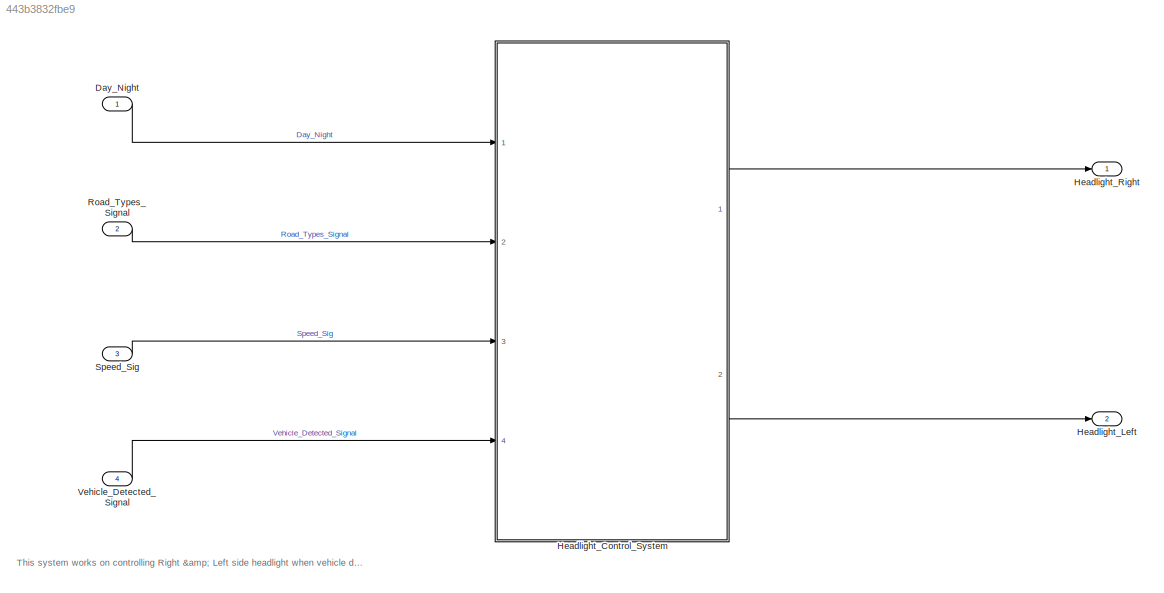
MODEL slx_443b3832fbe9
KIND model
CONFIG AbsTol = auto
CONFIG EnableMultiTasking = off
CONFIG FixedStep = 0.08
CONFIG MaxStep = auto
CONFIG MinStep = auto
CONFIG RelTol = 1e-3
CONFIG SampleTimeConstraint = Unconstrained
CONFIG Solver = FixedStepDiscrete
CONFIG SolverName = FixedStepDiscrete
CONFIG StartTime = 0.0
CONFIG StopTime = 10.0
BLOCK [Inport] Day_Night
  IconDisplay = Port number
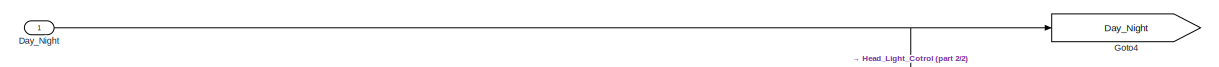
[diagram: Headlight_Control_System - part 1/2, full width, top band]
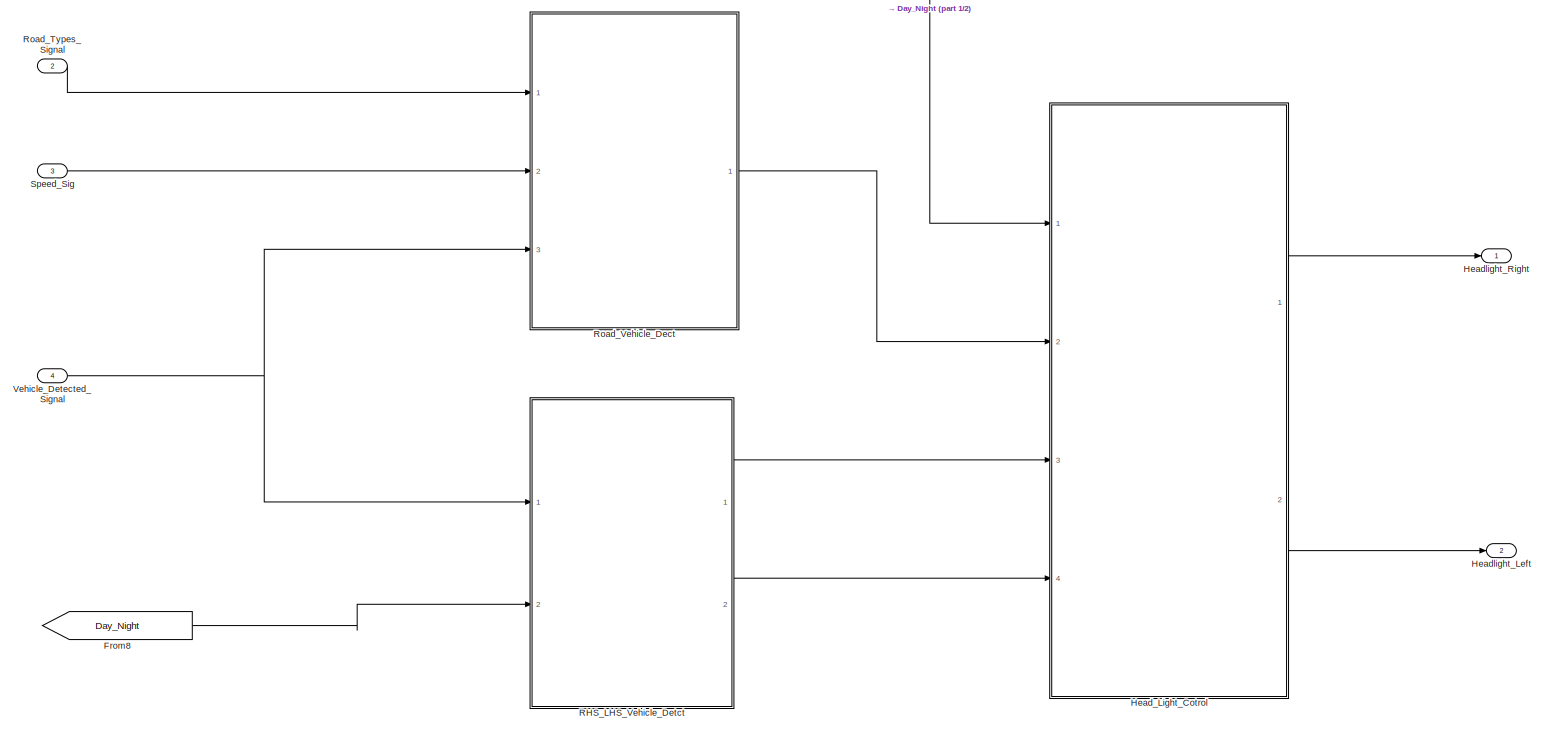
[diagram: Headlight_Control_System - part 2/2, most of the canvas]
BLOCK [SubSystem] Headlight_Control_System
  Ports = [4, 2]
  RequestExecContextInheritance = off
  TreatAsAtomicUnit = on
BLOCK [Inport] Headlight_Control_System/Day_Night
  IconDisplay = Port number
BLOCK [From] Headlight_Control_System/From8
  GotoTag = Day_Night
BLOCK [Goto] Headlight_Control_System/Goto4
  GotoTag = Day_Night
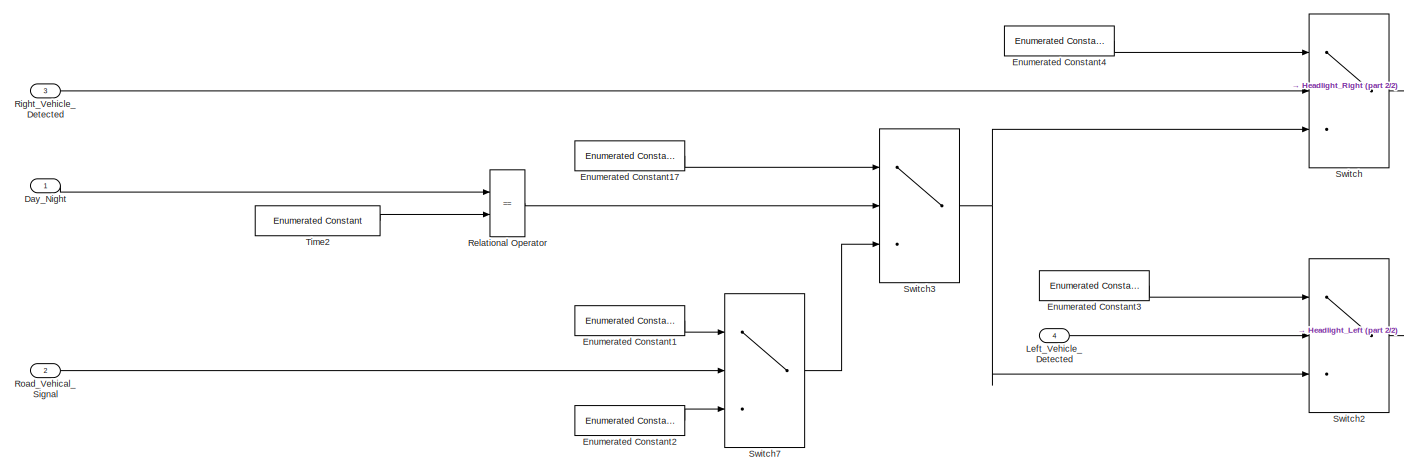
[diagram: Headlight_Control_System/Head_Light_Cotrol - part 1/2, most of the canvas]
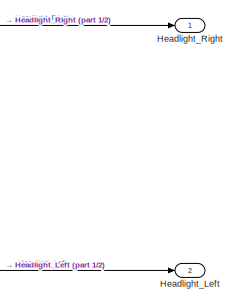
[diagram: Headlight_Control_System/Head_Light_Cotrol - part 2/2, middle right region]
BLOCK [SubSystem] Headlight_Control_System/Head_Light_Cotrol
  Ports = [4, 2]
  RequestExecContextInheritance = off
BLOCK [Inport] Headlight_Control_System/Head_Light_Cotrol/Day_Night
  IconDisplay = Port number
BLOCK [Reference] Headlight_Control_System/Head_Light_Cotrol/Enumerated Constant1  REF=simulink/Sources/Enumerated
Constant
  Ports = [0, 1]
  SourceBlock = simulink/Sources/Enumerated\nConstant
  SourceProductBaseCode = SL
  SourceType = Enumerated Constant
BLOCK [Reference] Headlight_Control_System/Head_Light_Cotrol/Enumerated Constant17  REF=simulink/Sources/Enumerated
Constant
  Ports = [0, 1]
  SourceBlock = simulink/Sources/Enumerated\nConstant
  SourceProductBaseCode = SL
  SourceType = Enumerated Constant
BLOCK [Reference] Headlight_Control_System/Head_Light_Cotrol/Enumerated Constant2  REF=simulink/Sources/Enumerated
Constant
  Ports = [0, 1]
  SourceBlock = simulink/Sources/Enumerated\nConstant
  SourceProductBaseCode = SL
  SourceType = Enumerated Constant
BLOCK [Reference] Headlight_Control_System/Head_Light_Cotrol/Enumerated Constant3  REF=simulink/Sources/Enumerated
Constant
  Ports = [0, 1]
  SourceBlock = simulink/Sources/Enumerated\nConstant
  SourceProductBaseCode = SL
  SourceType = Enumerated Constant
BLOCK [Reference] Headlight_Control_System/Head_Light_Cotrol/Enumerated Constant4  REF=simulink/Sources/Enumerated
Constant
  Ports = [0, 1]
  SourceBlock = simulink/Sources/Enumerated\nConstant
  SourceProductBaseCode = SL
  SourceType = Enumerated Constant
BLOCK [Outport] Headlight_Control_System/Head_Light_Cotrol/Headlight_Left
  IconDisplay = Port number
  Port = 2
  VectorParamsAs1DForOutWhenUnconnected = on
BLOCK [Outport] Headlight_Control_System/Head_Light_Cotrol/Headlight_Right
  IconDisplay = Port number
  VectorParamsAs1DForOutWhenUnconnected = on
BLOCK [Inport] Headlight_Control_System/Head_Light_Cotrol/Left_Vehicle_Detected
  IconDisplay = Port number
  Port = 4
BLOCK [RelationalOperator] Headlight_Control_System/Head_Light_Cotrol/Relational Operator
  InputSameDT = off
  Operator = ==
  OutDataTypeStr = boolean
  Ports = [2, 1]
  RndMeth = Simplest
BLOCK [Inport] Headlight_Control_System/Head_Light_Cotrol/Right_Vehicle_Detected
  IconDisplay = Port number
  Port = 3
BLOCK [Inport] Headlight_Control_System/Head_Light_Cotrol/Road_Vehical_Signal
  IconDisplay = Port number
  Port = 2
BLOCK [Switch] Headlight_Control_System/Head_Light_Cotrol/Switch
  Criteria = u2 ~= 0
  InputSameDT = off
  OutDataTypeStr = Inherit: Inherit via back propagation
  SaturateOnIntegerOverflow = off
BLOCK [Switch] Headlight_Control_System/Head_Light_Cotrol/Switch2
  Criteria = u2 ~= 0
  InputSameDT = off
  OutDataTypeStr = Inherit: Inherit via back propagation
  SaturateOnIntegerOverflow = off
BLOCK [Switch] Headlight_Control_System/Head_Light_Cotrol/Switch3
  Criteria = u2 ~= 0
  InputSameDT = off
  SaturateOnIntegerOverflow = off
BLOCK [Switch] Headlight_Control_System/Head_Light_Cotrol/Switch7
  Criteria = u2 ~= 0
  InputSameDT = off
  SaturateOnIntegerOverflow = off
BLOCK [Reference] Headlight_Control_System/Head_Light_Cotrol/Time2  REF=simulink/Sources/Enumerated
Constant
  Ports = [0, 1]
  SourceBlock = simulink/Sources/Enumerated\nConstant
  SourceProductBaseCode = SL
  SourceType = Enumerated Constant
BLOCK [Outport] Headlight_Control_System/Headlight_Left
  IconDisplay = Port number
  Port = 2
  VectorParamsAs1DForOutWhenUnconnected = on
BLOCK [Outport] Headlight_Control_System/Headlight_Right
  IconDisplay = Port number
  VectorParamsAs1DForOutWhenUnconnected = on
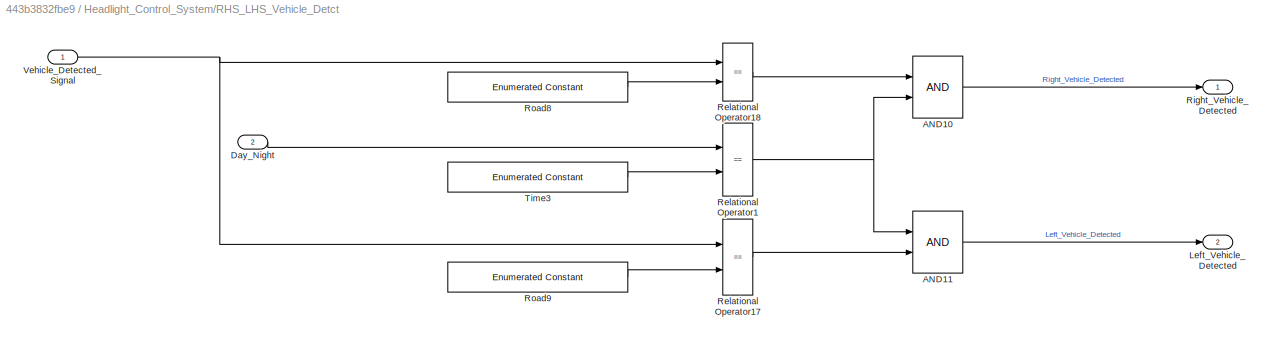
BLOCK [SubSystem] Headlight_Control_System/RHS_LHS_Vehicle_Detct
  Ports = [2, 2]
  RequestExecContextInheritance = off
BLOCK [Logic] Headlight_Control_System/RHS_LHS_Vehicle_Detct/AND10
  AllPortsSameDT = off
  OutDataTypeStr = boolean
  Ports = [2, 1]
BLOCK [Logic] Headlight_Control_System/RHS_LHS_Vehicle_Detct/AND11
  AllPortsSameDT = off
  OutDataTypeStr = boolean
  Ports = [2, 1]
BLOCK [Inport] Headlight_Control_System/RHS_LHS_Vehicle_Detct/Day_Night
  IconDisplay = Port number
  Port = 2
BLOCK [Outport] Headlight_Control_System/RHS_LHS_Vehicle_Detct/Left_Vehicle_Detected
  IconDisplay = Port number
  Port = 2
  VectorParamsAs1DForOutWhenUnconnected = on
BLOCK [RelationalOperator] Headlight_Control_System/RHS_LHS_Vehicle_Detct/Relational Operator1
  InputSameDT = off
  Operator = ==
  OutDataTypeStr = boolean
  Ports = [2, 1]
  RndMeth = Simplest
BLOCK [RelationalOperator] Headlight_Control_System/RHS_LHS_Vehicle_Detct/Relational Operator17
  InputSameDT = off
  Operator = ==
  OutDataTypeStr = boolean
  Ports = [2, 1]
  RndMeth = Simplest
BLOCK [RelationalOperator] Headlight_Control_System/RHS_LHS_Vehicle_Detct/Relational Operator18
  InputSameDT = off
  Operator = ==
  OutDataTypeStr = boolean
  Ports = [2, 1]
  RndMeth = Simplest
BLOCK [Outport] Headlight_Control_System/RHS_LHS_Vehicle_Detct/Right_Vehicle_Detected
  IconDisplay = Port number
  VectorParamsAs1DForOutWhenUnconnected = on
BLOCK [Reference] Headlight_Control_System/RHS_LHS_Vehicle_Detct/Road8  REF=simulink/Sources/Enumerated
Constant
  Ports = [0, 1]
  SourceBlock = simulink/Sources/Enumerated\nConstant
  SourceProductBaseCode = SL
  SourceType = Enumerated Constant
BLOCK [Reference] Headlight_Control_System/RHS_LHS_Vehicle_Detct/Road9  REF=simulink/Sources/Enumerated
Constant
  Ports = [0, 1]
  SourceBlock = simulink/Sources/Enumerated\nConstant
  SourceProductBaseCode = SL
  SourceType = Enumerated Constant
BLOCK [Reference] Headlight_Control_System/RHS_LHS_Vehicle_Detct/Time3  REF=simulink/Sources/Enumerated
Constant
  Ports = [0, 1]
  SourceBlock = simulink/Sources/Enumerated\nConstant
  SourceProductBaseCode = SL
  SourceType = Enumerated Constant
BLOCK [Inport] Headlight_Control_System/RHS_LHS_Vehicle_Detct/Vehicle_Detected_Signal
  IconDisplay = Port number
BLOCK [Inport] Headlight_Control_System/Road_Types_Signal
  IconDisplay = Port number
  Port = 2
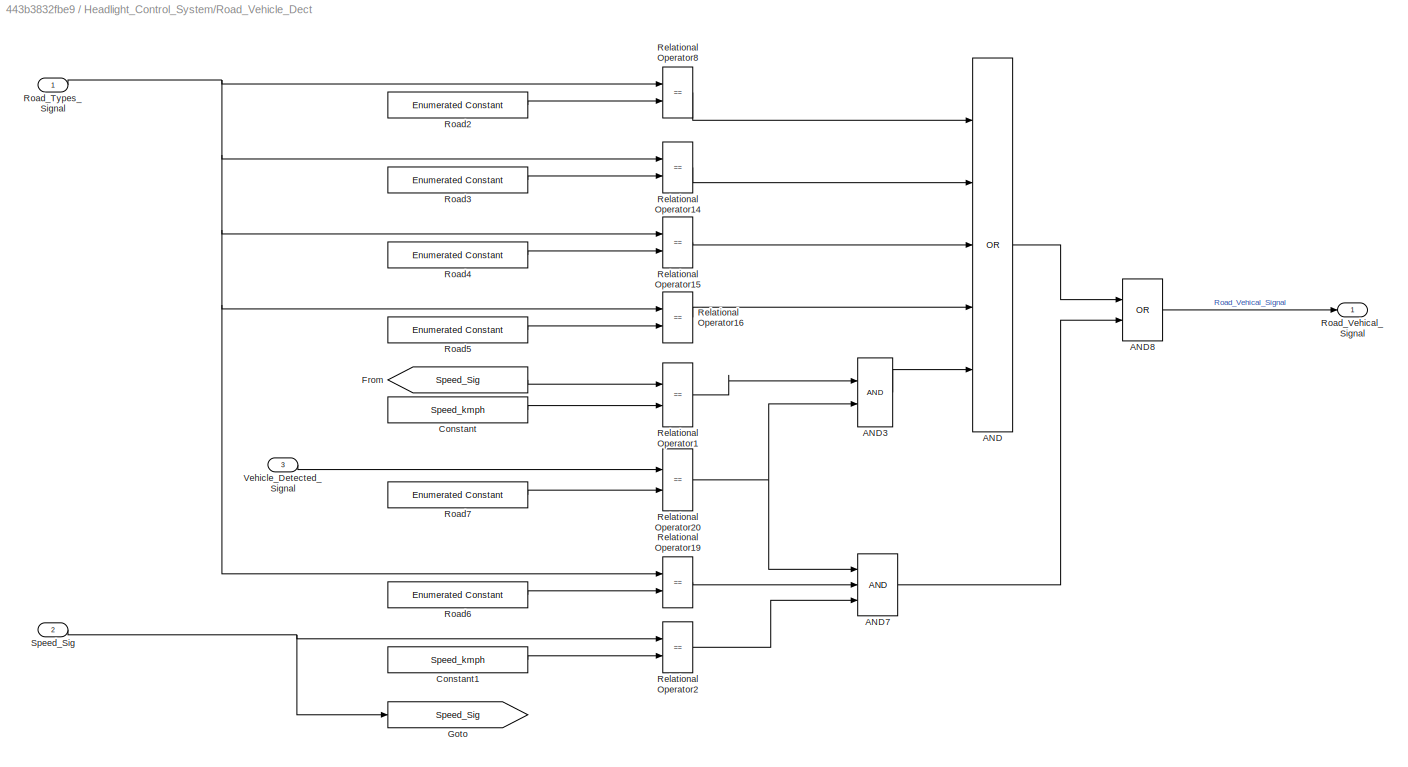
BLOCK [SubSystem] Headlight_Control_System/Road_Vehicle_Dect
  Ports = [3, 1]
  RequestExecContextInheritance = off
BLOCK [Logic] Headlight_Control_System/Road_Vehicle_Dect/AND
  AllPortsSameDT = off
  Inputs = 5
  Operator = OR
  OutDataTypeStr = boolean
  Ports = [5, 1]
BLOCK [Logic] Headlight_Control_System/Road_Vehicle_Dect/AND3
  AllPortsSameDT = off
  OutDataTypeStr = boolean
  Ports = [2, 1]
BLOCK [Logic] Headlight_Control_System/Road_Vehicle_Dect/AND7
  AllPortsSameDT = off
  Inputs = 3
  OutDataTypeStr = boolean
  Ports = [3, 1]
BLOCK [Logic] Headlight_Control_System/Road_Vehicle_Dect/AND8
  AllPortsSameDT = off
  Operator = OR
  OutDataTypeStr = boolean
  Ports = [2, 1]
BLOCK [Constant] Headlight_Control_System/Road_Vehicle_Dect/Constant
  Value = Speed_kmph
BLOCK [Constant] Headlight_Control_System/Road_Vehicle_Dect/Constant1
  Value = Speed_kmph
BLOCK [From] Headlight_Control_System/Road_Vehicle_Dect/From
  GotoTag = Speed_Sig
BLOCK [Goto] Headlight_Control_System/Road_Vehicle_Dect/Goto
  GotoTag = Speed_Sig
BLOCK [RelationalOperator] Headlight_Control_System/Road_Vehicle_Dect/Relational Operator1
  InputSameDT = off
  Operator = ==
  OutDataTypeStr = boolean
  Ports = [2, 1]
  RndMeth = Simplest
BLOCK [RelationalOperator] Headlight_Control_System/Road_Vehicle_Dect/Relational Operator14
  InputSameDT = off
  Operator = ==
  OutDataTypeStr = boolean
  Ports = [2, 1]
  RndMeth = Simplest
BLOCK [RelationalOperator] Headlight_Control_System/Road_Vehicle_Dect/Relational Operator15
  InputSameDT = off
  Operator = ==
  OutDataTypeStr = boolean
  Ports = [2, 1]
  RndMeth = Simplest
BLOCK [RelationalOperator] Headlight_Control_System/Road_Vehicle_Dect/Relational Operator16
  InputSameDT = off
  Operator = ==
  OutDataTypeStr = boolean
  Ports = [2, 1]
  RndMeth = Simplest
BLOCK [RelationalOperator] Headlight_Control_System/Road_Vehicle_Dect/Relational Operator19
  InputSameDT = off
  Operator = ==
  OutDataTypeStr = boolean
  Ports = [2, 1]
  RndMeth = Simplest
BLOCK [RelationalOperator] Headlight_Control_System/Road_Vehicle_Dect/Relational Operator2
  InputSameDT = off
  Operator = ==
  OutDataTypeStr = boolean
  Ports = [2, 1]
  RndMeth = Simplest
BLOCK [RelationalOperator] Headlight_Control_System/Road_Vehicle_Dect/Relational Operator20
  InputSameDT = off
  Operator = ==
  OutDataTypeStr = boolean
  Ports = [2, 1]
  RndMeth = Simplest
BLOCK [RelationalOperator] Headlight_Control_System/Road_Vehicle_Dect/Relational Operator8
  InputSameDT = off
  Operator = ==
  OutDataTypeStr = boolean
  Ports = [2, 1]
  RndMeth = Simplest
BLOCK [Reference] Headlight_Control_System/Road_Vehicle_Dect/Road2  REF=simulink/Sources/Enumerated
Constant
  Ports = [0, 1]
  SourceBlock = simulink/Sources/Enumerated\nConstant
  SourceProductBaseCode = SL
  SourceType = Enumerated Constant
BLOCK [Reference] Headlight_Control_System/Road_Vehicle_Dect/Road3  REF=simulink/Sources/Enumerated
Constant
  Ports = [0, 1]
  SourceBlock = simulink/Sources/Enumerated\nConstant
  SourceProductBaseCode = SL
  SourceType = Enumerated Constant
BLOCK [Reference] Headlight_Control_System/Road_Vehicle_Dect/Road4  REF=simulink/Sources/Enumerated
Constant
  Ports = [0, 1]
  SourceBlock = simulink/Sources/Enumerated\nConstant
  SourceProductBaseCode = SL
  SourceType = Enumerated Constant
BLOCK [Reference] Headlight_Control_System/Road_Vehicle_Dect/Road5  REF=simulink/Sources/Enumerated
Constant
  Ports = [0, 1]
  SourceBlock = simulink/Sources/Enumerated\nConstant
  SourceProductBaseCode = SL
  SourceType = Enumerated Constant
BLOCK [Reference] Headlight_Control_System/Road_Vehicle_Dect/Road6  REF=simulink/Sources/Enumerated
Constant
  Ports = [0, 1]
  SourceBlock = simulink/Sources/Enumerated\nConstant
  SourceProductBaseCode = SL
  SourceType = Enumerated Constant
BLOCK [Reference] Headlight_Control_System/Road_Vehicle_Dect/Road7  REF=simulink/Sources/Enumerated
Constant
  Ports = [0, 1]
  SourceBlock = simulink/Sources/Enumerated\nConstant
  SourceProductBaseCode = SL
  SourceType = Enumerated Constant
BLOCK [Inport] Headlight_Control_System/Road_Vehicle_Dect/Road_Types_Signal
  IconDisplay = Port number
BLOCK [Outport] Headlight_Control_System/Road_Vehicle_Dect/Road_Vehical_Signal
  IconDisplay = Port number
  VectorParamsAs1DForOutWhenUnconnected = on
BLOCK [Inport] Headlight_Control_System/Road_Vehicle_Dect/Speed_Sig
  IconDisplay = Port number
  Port = 2
BLOCK [Inport] Headlight_Control_System/Road_Vehicle_Dect/Vehicle_Detected_Signal
  IconDisplay = Port number
  Port = 3
BLOCK [Inport] Headlight_Control_System/Speed_Sig
  IconDisplay = Port number
  Port = 3
BLOCK [Inport] Headlight_Control_System/Vehicle_Detected_Signal
  IconDisplay = Port number
  Port = 4
BLOCK [Outport] Headlight_Left
  IconDisplay = Port number
  Port = 2
  VectorParamsAs1DForOutWhenUnconnected = on
BLOCK [Outport] Headlight_Right
  IconDisplay = Port number
  VectorParamsAs1DForOutWhenUnconnected = on
BLOCK [Inport] Road_Types_Signal
  IconDisplay = Port number
  Port = 2
BLOCK [Inport] Speed_Sig
  IconDisplay = Port number
  Port = 3
BLOCK [Inport] Vehicle_Detected_Signal
  IconDisplay = Port number
  Port = 4
ANNOTATION (root): This system works on controlling Right & Left side headlight when vehicle detected Left/Right side by consideing the speed of vehicle and the type of road in day & night situation.
LINE Day_Night:1 -> Headlight_Control_System:1
NET Headlight_Control_System/Day_Night:1 -> Headlight_Control_System/Goto4:1, Headlight_Control_System/Head_Light_Cotrol:1
LINE Headlight_Control_System/From8:1 -> Headlight_Control_System/RHS_LHS_Vehicle_Detct:2
LINE Headlight_Control_System/Head_Light_Cotrol/Day_Night:1 -> Headlight_Control_System/Head_Light_Cotrol/Relational Operator:1
LINE Headlight_Control_System/Head_Light_Cotrol/Enumerated Constant17:1 -> Headlight_Control_System/Head_Light_Cotrol/Switch3:1
LINE Headlight_Control_System/Head_Light_Cotrol/Enumerated Constant1:1 -> Headlight_Control_System/Head_Light_Cotrol/Switch7:1
LINE Headlight_Control_System/Head_Light_Cotrol/Enumerated Constant2:1 -> Headlight_Control_System/Head_Light_Cotrol/Switch7:3
LINE Headlight_Control_System/Head_Light_Cotrol/Enumerated Constant3:1 -> Headlight_Control_System/Head_Light_Cotrol/Switch2:1
LINE Headlight_Control_System/Head_Light_Cotrol/Enumerated Constant4:1 -> Headlight_Control_System/Head_Light_Cotrol/Switch:1
LINE Headlight_Control_System/Head_Light_Cotrol/Left_Vehicle_Detected:1 -> Headlight_Control_System/Head_Light_Cotrol/Switch2:2
LINE Headlight_Control_System/Head_Light_Cotrol/Relational Operator:1 -> Headlight_Control_System/Head_Light_Cotrol/Switch3:2
LINE Headlight_Control_System/Head_Light_Cotrol/Right_Vehicle_Detected:1 -> Headlight_Control_System/Head_Light_Cotrol/Switch:2
LINE Headlight_Control_System/Head_Light_Cotrol/Road_Vehical_Signal:1 -> Headlight_Control_System/Head_Light_Cotrol/Switch7:2
LINE Headlight_Control_System/Head_Light_Cotrol/Switch2:1 -> Headlight_Control_System/Head_Light_Cotrol/Headlight_Left:1
NET Headlight_Control_System/Head_Light_Cotrol/Switch3:1 -> Headlight_Control_System/Head_Light_Cotrol/Switch2:3, Headlight_Control_System/Head_Light_Cotrol/Switch:3
LINE Headlight_Control_System/Head_Light_Cotrol/Switch7:1 -> Headlight_Control_System/Head_Light_Cotrol/Switch3:3
LINE Headlight_Control_System/Head_Light_Cotrol/Switch:1 -> Headlight_Control_System/Head_Light_Cotrol/Headlight_Right:1
LINE Headlight_Control_System/Head_Light_Cotrol/Time2:1 -> Headlight_Control_System/Head_Light_Cotrol/Relational Operator:2
LINE Headlight_Control_System/Head_Light_Cotrol:1 -> Headlight_Control_System/Headlight_Right:1
LINE Headlight_Control_System/Head_Light_Cotrol:2 -> Headlight_Control_System/Headlight_Left:1
LINE Headlight_Control_System/RHS_LHS_Vehicle_Detct/AND10:1 -> Headlight_Control_System/RHS_LHS_Vehicle_Detct/Right_Vehicle_Detected:1
LINE Headlight_Control_System/RHS_LHS_Vehicle_Detct/AND11:1 -> Headlight_Control_System/RHS_LHS_Vehicle_Detct/Left_Vehicle_Detected:1
LINE Headlight_Control_System/RHS_LHS_Vehicle_Detct/Day_Night:1 -> Headlight_Control_System/RHS_LHS_Vehicle_Detct/Relational Operator1:1
LINE Headlight_Control_System/RHS_LHS_Vehicle_Detct/Relational Operator17:1 -> Headlight_Control_System/RHS_LHS_Vehicle_Detct/AND11:2
LINE Headlight_Control_System/RHS_LHS_Vehicle_Detct/Relational Operator18:1 -> Headlight_Control_System/RHS_LHS_Vehicle_Detct/AND10:1
NET Headlight_Control_System/RHS_LHS_Vehicle_Detct/Relational Operator1:1 -> Headlight_Control_System/RHS_LHS_Vehicle_Detct/AND10:2, Headlight_Control_System/RHS_LHS_Vehicle_Detct/AND11:1
LINE Headlight_Control_System/RHS_LHS_Vehicle_Detct/Road8:1 -> Headlight_Control_System/RHS_LHS_Vehicle_Detct/Relational Operator18:2
LINE Headlight_Control_System/RHS_LHS_Vehicle_Detct/Road9:1 -> Headlight_Control_System/RHS_LHS_Vehicle_Detct/Relational Operator17:2
LINE Headlight_Control_System/RHS_LHS_Vehicle_Detct/Time3:1 -> Headlight_Control_System/RHS_LHS_Vehicle_Detct/Relational Operator1:2
NET Headlight_Control_System/RHS_LHS_Vehicle_Detct/Vehicle_Detected_Signal:1 -> Headlight_Control_System/RHS_LHS_Vehicle_Detct/Relational Operator17:1, Headlight_Control_System/RHS_LHS_Vehicle_Detct/Relational Operator18:1
LINE Headlight_Control_System/RHS_LHS_Vehicle_Detct:1 -> Headlight_Control_System/Head_Light_Cotrol:3
LINE Headlight_Control_System/RHS_LHS_Vehicle_Detct:2 -> Headlight_Control_System/Head_Light_Cotrol:4
LINE Headlight_Control_System/Road_Types_Signal:1 -> Headlight_Control_System/Road_Vehicle_Dect:1
LINE Headlight_Control_System/Road_Vehicle_Dect/AND3:1 -> Headlight_Control_System/Road_Vehicle_Dect/AND:5
LINE Headlight_Control_System/Road_Vehicle_Dect/AND7:1 -> Headlight_Control_System/Road_Vehicle_Dect/AND8:2
LINE Headlight_Control_System/Road_Vehicle_Dect/AND8:1 -> Headlight_Control_System/Road_Vehicle_Dect/Road_Vehical_Signal:1
LINE Headlight_Control_System/Road_Vehicle_Dect/AND:1 -> Headlight_Control_System/Road_Vehicle_Dect/AND8:1
LINE Headlight_Control_System/Road_Vehicle_Dect/Constant1:1 -> Headlight_Control_System/Road_Vehicle_Dect/Relational Operator2:2
LINE Headlight_Control_System/Road_Vehicle_Dect/Constant:1 -> Headlight_Control_System/Road_Vehicle_Dect/Relational Operator1:2
LINE Headlight_Control_System/Road_Vehicle_Dect/From:1 -> Headlight_Control_System/Road_Vehicle_Dect/Relational Operator1:1
LINE Headlight_Control_System/Road_Vehicle_Dect/Relational Operator14:1 -> Headlight_Control_System/Road_Vehicle_Dect/AND:2
LINE Headlight_Control_System/Road_Vehicle_Dect/Relational Operator15:1 -> Headlight_Control_System/Road_Vehicle_Dect/AND:3
LINE Headlight_Control_System/Road_Vehicle_Dect/Relational Operator16:1 -> Headlight_Control_System/Road_Vehicle_Dect/AND:4
LINE Headlight_Control_System/Road_Vehicle_Dect/Relational Operator19:1 -> Headlight_Control_System/Road_Vehicle_Dect/AND7:2
LINE Headlight_Control_System/Road_Vehicle_Dect/Relational Operator1:1 -> Headlight_Control_System/Road_Vehicle_Dect/AND3:1
NET Headlight_Control_System/Road_Vehicle_Dect/Relational Operator20:1 -> Headlight_Control_System/Road_Vehicle_Dect/AND3:2, Headlight_Control_System/Road_Vehicle_Dect/AND7:1
LINE Headlight_Control_System/Road_Vehicle_Dect/Relational Operator2:1 -> Headlight_Control_System/Road_Vehicle_Dect/AND7:3
LINE Headlight_Control_System/Road_Vehicle_Dect/Relational Operator8:1 -> Headlight_Control_System/Road_Vehicle_Dect/AND:1
LINE Headlight_Control_System/Road_Vehicle_Dect/Road2:1 -> Headlight_Control_System/Road_Vehicle_Dect/Relational Operator8:2
LINE Headlight_Control_System/Road_Vehicle_Dect/Road3:1 -> Headlight_Control_System/Road_Vehicle_Dect/Relational Operator14:2
LINE Headlight_Control_System/Road_Vehicle_Dect/Road4:1 -> Headlight_Control_System/Road_Vehicle_Dect/Relational Operator15:2
LINE Headlight_Control_System/Road_Vehicle_Dect/Road5:1 -> Headlight_Control_System/Road_Vehicle_Dect/Relational Operator16:2
LINE Headlight_Control_System/Road_Vehicle_Dect/Road6:1 -> Headlight_Control_System/Road_Vehicle_Dect/Relational Operator19:2
LINE Headlight_Control_System/Road_Vehicle_Dect/Road7:1 -> Headlight_Control_System/Road_Vehicle_Dect/Relational Operator20:2
NET Headlight_Control_System/Road_Vehicle_Dect/Road_Types_Signal:1 -> Headlight_Control_System/Road_Vehicle_Dect/Relational Operator14:1, Headlight_Control_System/Road_Vehicle_Dect/Relational Operator15:1, Headlight_Control_System/Road_Vehicle_Dect/Relational Operator16:1, Headlight_Control_System/Road_Vehicle_Dect/Relational Operator19:1, Headlight_Control_System/Road_Vehicle_Dect/Relational Operator8:1
NET Headlight_Control_System/Road_Vehicle_Dect/Speed_Sig:1 -> Headlight_Control_System/Road_Vehicle_Dect/Goto:1, Headlight_Control_System/Road_Vehicle_Dect/Relational Operator2:1
LINE Headlight_Control_System/Road_Vehicle_Dect/Vehicle_Detected_Signal:1 -> Headlight_Control_System/Road_Vehicle_Dect/Relational Operator20:1
LINE Headlight_Control_System/Road_Vehicle_Dect:1 -> Headlight_Control_System/Head_Light_Cotrol:2
LINE Headlight_Control_System/Speed_Sig:1 -> Headlight_Control_System/Road_Vehicle_Dect:2
NET Headlight_Control_System/Vehicle_Detected_Signal:1 -> Headlight_Control_System/RHS_LHS_Vehicle_Detct:1, Headlight_Control_System/Road_Vehicle_Dect:3
LINE Headlight_Control_System:1 -> Headlight_Right:1
LINE Headlight_Control_System:2 -> Headlight_Left:1
LINE Road_Types_Signal:1 -> Headlight_Control_System:2
LINE Speed_Sig:1 -> Headlight_Control_System:3
LINE Vehicle_Detected_Signal:1 -> Headlight_Control_System:4
note: NET lines group one-source signal fan-out (src -> all destinations, sorted); 1:1 wires keep LINE
